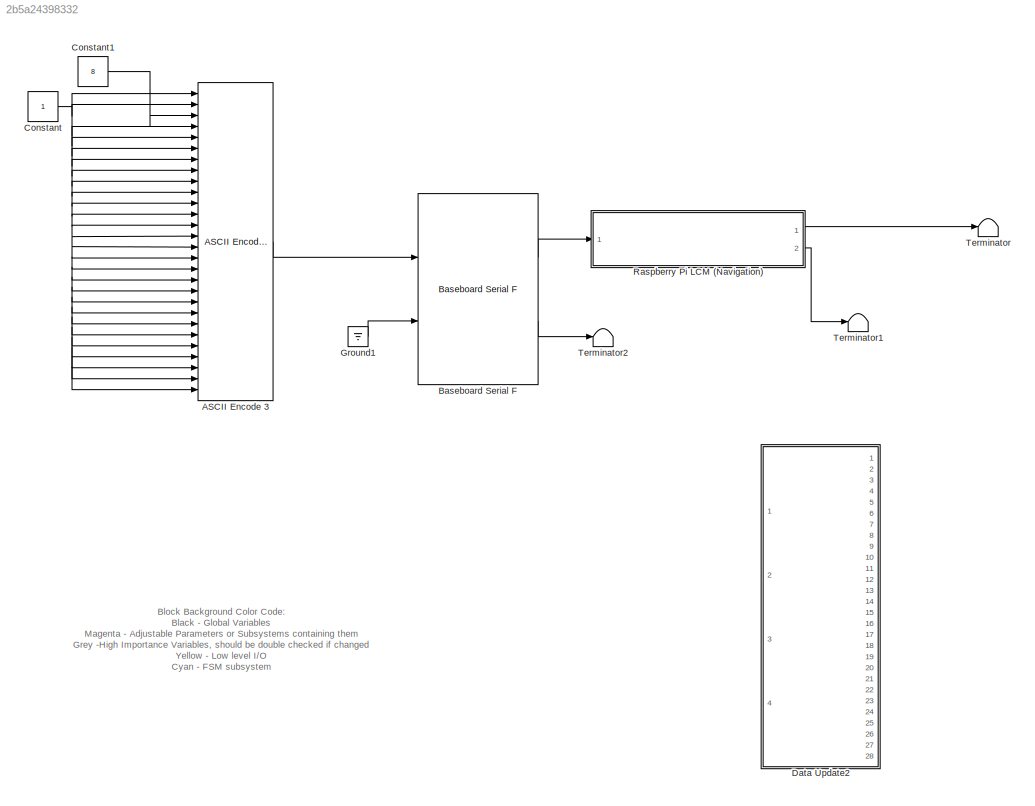
MODEL slx_2b5a24398332
KIND model
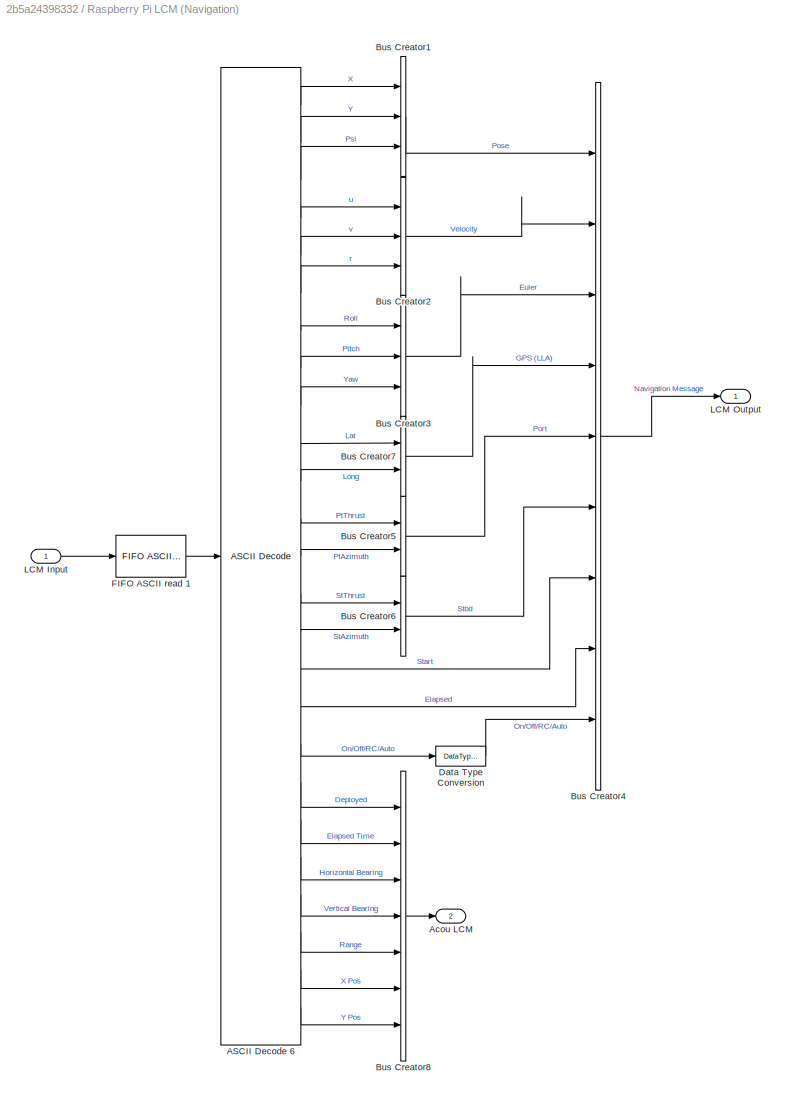
BLOCK [SubSystem]  Raspberry Pi LCM (Navigation)
  Ports = [1, 2]
  RequestExecContextInheritance = off
BLOCK [Reference]  Raspberry Pi LCM (Navigation)/ASCII Decode 6  REF=xpcseriallib/ASCII Decode 
  Ports = [1, 25]
  SourceBlock = xpcseriallib/ASCII Decode
  SourceType = ASCII Decode
  format = P1:%f P2:%f P3:%f V1:%f V2:%f V3:%f E1:%f E2:%f E3:%f Lat:%f Long:%f Pt1:%f Pt2:%f St1:%f St2:%f Start:%f Elapsed:%f RC:%d Deploy:%u Elapsed:%f Bearing1:%f Bearing2:%f Range:%f X_Pos:%f Y_Pos:%f \r\n
  nvars = 25
  vartypes = {}
BLOCK [Outport]  Raspberry Pi LCM (Navigation)/Acou LCM
  IconDisplay = Port number
  Port = 2
BLOCK [BusCreator]  Raspberry Pi LCM (Navigation)/Bus Creator1
  DisplayOption = bar
  Inputs = 3
  Ports = [3, 1]
BLOCK [BusCreator]  Raspberry Pi LCM (Navigation)/Bus Creator2
  DisplayOption = bar
  Inputs = 3
  Ports = [3, 1]
BLOCK [BusCreator]  Raspberry Pi LCM (Navigation)/Bus Creator3
  DisplayOption = bar
  Inputs = 3
  Ports = [3, 1]
BLOCK [BusCreator]  Raspberry Pi LCM (Navigation)/Bus Creator4
  DisplayOption = bar
  Inputs = 9
  Ports = [9, 1]
BLOCK [BusCreator]  Raspberry Pi LCM (Navigation)/Bus Creator5
  DisplayOption = bar
  Inputs = 2
  Ports = [2, 1]
BLOCK [BusCreator]  Raspberry Pi LCM (Navigation)/Bus Creator6
  DisplayOption = bar
  Inputs = 2
  Ports = [2, 1]
BLOCK [BusCreator]  Raspberry Pi LCM (Navigation)/Bus Creator7
  DisplayOption = bar
  Inputs = 2
  Ports = [2, 1]
BLOCK [BusCreator]  Raspberry Pi LCM (Navigation)/Bus Creator8
  DisplayOption = bar
  Inputs = 7
  Ports = [7, 1]
BLOCK [DataTypeConversion]  Raspberry Pi LCM (Navigation)/Data Type Conversion
  OutDataTypeStr = double
  RndMeth = Floor
  SaturateOnIntegerOverflow = off
BLOCK [Reference]  Raspberry Pi LCM (Navigation)/FIFO ASCII read 1  REF=xpcseriallib/FIFO ASCII read 
  Ports = [1, 1]
  SourceBlock = xpcseriallib/FIFO ASCII read
  SourceType = Asynchronous FIFO Block: reader
  enable = off
  header = {'P1:'}
  hold = Zero output if no new data
  maxsize = 2000
  outputtype = 8 bit uint null terminated
  sampletime = -1
  term = [13 10]
BLOCK [Inport]  Raspberry Pi LCM (Navigation)/LCM Input
  IconDisplay = Port number
BLOCK [Outport]  Raspberry Pi LCM (Navigation)/LCM Output
  IconDisplay = Port number
BLOCK [Reference] ASCII Encode 3  REF=xpcseriallib/ASCII Encode 
  Ports = [28, 1]
  SourceBlock = xpcseriallib/ASCII Encode
  SourceType = ASCII Encode
  format = {"Valid":%d, "Mode":%d, "Length":%d, "Activate":%d, "Waypoints":[%f, %f, %f, %f, %f, %f, %f, %f, %f, %f, %f, %f, %f, %f, %f, %f, %f, %f, %f, %f, %f, %f, %f, %f]} \r\n
  maxlength = 1000
  nvars = 28
  vartypes = { 'double' }
BLOCK [Reference] Baseboard Serial F  REF=xpcseriallib/Mainboard/Baseboard
Serial F
  Ports = [2, 2]
  SourceBlock = xpcseriallib/Mainboard/Baseboard\nSerial F
  SourceType = Baseboard RS232 Send Receive
  automode1 = on
  automode2 = on
  baud1 = 115200
  baud2 = 115200
  config = Com1/Com3
  fifomode1 = 64 deep
  fifomode2 = 64 deep
  group = Basic Setup
  irqnum = 4
  ndata1 = 7
  ndata2 = 7
  nstop1 = 1
  nstop2 = 1
  parity1 = Even
  parity2 = Even
  port = 1
  rcvfifosize1 = 1024
  rcvfifosize2 = 1024
  rlevel1 = 1
  rlevel2 = 1
  saddr1 = 0x3f8
  saddr2 = 0x3e8
  xmtdatatype1 = 8 bit uint null terminated
  xmtdatatype2 = 8 bit uint null terminated
  xmtfifosize1 = 1024
  xmtfifosize2 = 1024
BLOCK [Constant] Constant
BLOCK [Constant] Constant1
  Value = 8
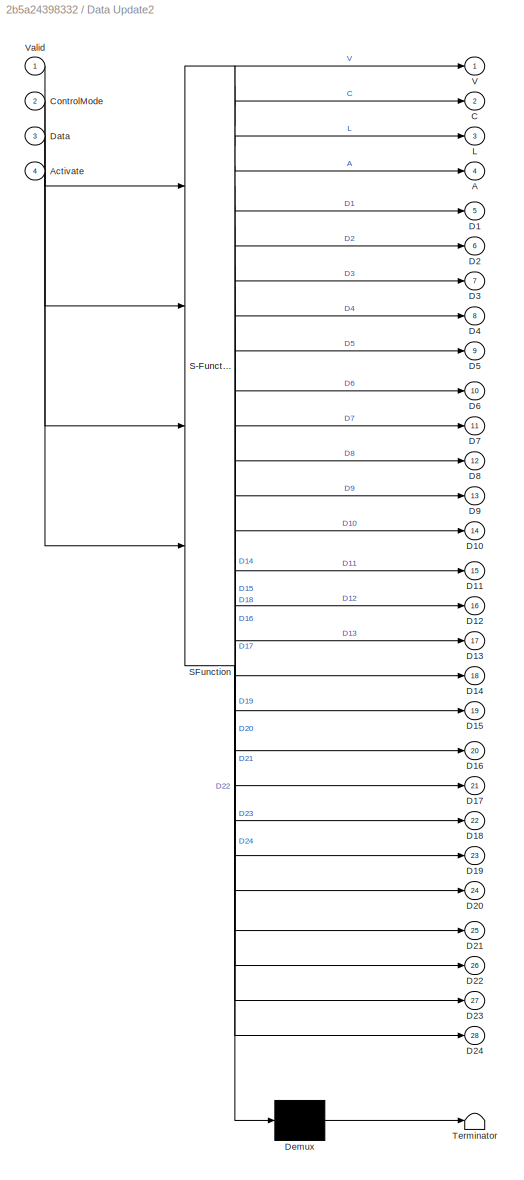
BLOCK [SubSystem] Data Update2
  Commented = on
  ErrorFcn = Stateflow.Translate.translate
  PermitHierarchicalResolution = ExplicitOnly
  Ports = [4, 28]
  RequestExecContextInheritance = off
  SFBlockType = MATLAB Function
  TreatAsAtomicUnit = on
BLOCK [Demux] Data Update2/ Demux 
  Outputs = 1
  Ports = [1, 1]
BLOCK [S-Function] Data Update2/ SFunction 
  EnableBusSupport = on
  FunctionName = sf_sfun
  PortCounts = [4 29]
  Ports = [4, 29]
  Tag = Stateflow S-Function RobotX_CommOnlyAllThreeV4 1
BLOCK [Terminator] Data Update2/ Terminator 
BLOCK [Outport] Data Update2/A
  IconDisplay = Port number
  Port = 4
BLOCK [Inport] Data Update2/Activate
  IconDisplay = Port number
  Port = 4
BLOCK [Outport] Data Update2/C
  IconDisplay = Port number
  Port = 2
BLOCK [Inport] Data Update2/ControlMode
  IconDisplay = Port number
  Port = 2
BLOCK [Outport] Data Update2/D1
  IconDisplay = Port number
  Port = 5
BLOCK [Outport] Data Update2/D10
  IconDisplay = Port number
  Port = 14
BLOCK [Outport] Data Update2/D11
  IconDisplay = Port number
  Port = 15
BLOCK [Outport] Data Update2/D12
  IconDisplay = Port number
  Port = 16
BLOCK [Outport] Data Update2/D13
  IconDisplay = Port number
  Port = 17
BLOCK [Outport] Data Update2/D14
  IconDisplay = Port number
  Port = 18
BLOCK [Outport] Data Update2/D15
  IconDisplay = Port number
  Port = 19
BLOCK [Outport] Data Update2/D16
  IconDisplay = Port number
  Port = 20
BLOCK [Outport] Data Update2/D17
  IconDisplay = Port number
  Port = 21
BLOCK [Outport] Data Update2/D18
  IconDisplay = Port number
  Port = 22
BLOCK [Outport] Data Update2/D19
  IconDisplay = Port number
  Port = 23
BLOCK [Outport] Data Update2/D2
  IconDisplay = Port number
  Port = 6
BLOCK [Outport] Data Update2/D20
  IconDisplay = Port number
  Port = 24
BLOCK [Outport] Data Update2/D21
  IconDisplay = Port number
  Port = 25
BLOCK [Outport] Data Update2/D22
  IconDisplay = Port number
  Port = 26
BLOCK [Outport] Data Update2/D23
  IconDisplay = Port number
  Port = 27
BLOCK [Outport] Data Update2/D24
  IconDisplay = Port number
  Port = 28
BLOCK [Outport] Data Update2/D3
  IconDisplay = Port number
  Port = 7
BLOCK [Outport] Data Update2/D4
  IconDisplay = Port number
  Port = 8
BLOCK [Outport] Data Update2/D5
  IconDisplay = Port number
  Port = 9
BLOCK [Outport] Data Update2/D6
  IconDisplay = Port number
  Port = 10
BLOCK [Outport] Data Update2/D7
  IconDisplay = Port number
  Port = 11
BLOCK [Outport] Data Update2/D8
  IconDisplay = Port number
  Port = 12
BLOCK [Outport] Data Update2/D9
  IconDisplay = Port number
  Port = 13
BLOCK [Inport] Data Update2/Data
  IconDisplay = Port number
  Port = 3
BLOCK [Outport] Data Update2/L
  IconDisplay = Port number
  Port = 3
BLOCK [Outport] Data Update2/V
  IconDisplay = Port number
BLOCK [Inport] Data Update2/Valid
  IconDisplay = Port number
BLOCK [Ground] Ground1
BLOCK [Terminator] Terminator
BLOCK [Terminator] Terminator1
BLOCK [Terminator] Terminator2
ANNOTATION (root): Block Background Color Code: Black - Global Variables Magenta - Adjustable Parameters or Subsystems containing them Grey -High Importance Variables, should be double checked if changed Yellow - Low level I/O Cyan - FSM subsystem Light Blue - Conditional Selector Block Dark Green - Task Enablers Orange - Output Selectors Green - Signal Bussing Blocks Red - Logic blocks. Determine signals for output...<+28ch>
LINE  Raspberry Pi LCM (Navigation)/ASCII Decode 6:1 ->  Raspberry Pi LCM (Navigation)/Bus Creator1:1
LINE  Raspberry Pi LCM (Navigation)/ASCII Decode 6:10 ->  Raspberry Pi LCM (Navigation)/Bus Creator7:1
LINE  Raspberry Pi LCM (Navigation)/ASCII Decode 6:11 ->  Raspberry Pi LCM (Navigation)/Bus Creator7:2
LINE  Raspberry Pi LCM (Navigation)/ASCII Decode 6:12 ->  Raspberry Pi LCM (Navigation)/Bus Creator5:1
LINE  Raspberry Pi LCM (Navigation)/ASCII Decode 6:13 ->  Raspberry Pi LCM (Navigation)/Bus Creator5:2
LINE  Raspberry Pi LCM (Navigation)/ASCII Decode 6:14 ->  Raspberry Pi LCM (Navigation)/Bus Creator6:1
LINE  Raspberry Pi LCM (Navigation)/ASCII Decode 6:15 ->  Raspberry Pi LCM (Navigation)/Bus Creator6:2
LINE  Raspberry Pi LCM (Navigation)/ASCII Decode 6:16 ->  Raspberry Pi LCM (Navigation)/Bus Creator4:7
LINE  Raspberry Pi LCM (Navigation)/ASCII Decode 6:17 ->  Raspberry Pi LCM (Navigation)/Bus Creator4:8
LINE  Raspberry Pi LCM (Navigation)/ASCII Decode 6:18 ->  Raspberry Pi LCM (Navigation)/Data Type Conversion:1
LINE  Raspberry Pi LCM (Navigation)/ASCII Decode 6:19 ->  Raspberry Pi LCM (Navigation)/Bus Creator8:1
LINE  Raspberry Pi LCM (Navigation)/ASCII Decode 6:2 ->  Raspberry Pi LCM (Navigation)/Bus Creator1:2
LINE  Raspberry Pi LCM (Navigation)/ASCII Decode 6:20 ->  Raspberry Pi LCM (Navigation)/Bus Creator8:2
LINE  Raspberry Pi LCM (Navigation)/ASCII Decode 6:21 ->  Raspberry Pi LCM (Navigation)/Bus Creator8:3
LINE  Raspberry Pi LCM (Navigation)/ASCII Decode 6:22 ->  Raspberry Pi LCM (Navigation)/Bus Creator8:4
LINE  Raspberry Pi LCM (Navigation)/ASCII Decode 6:23 ->  Raspberry Pi LCM (Navigation)/Bus Creator8:5
LINE  Raspberry Pi LCM (Navigation)/ASCII Decode 6:24 ->  Raspberry Pi LCM (Navigation)/Bus Creator8:6
LINE  Raspberry Pi LCM (Navigation)/ASCII Decode 6:25 ->  Raspberry Pi LCM (Navigation)/Bus Creator8:7
LINE  Raspberry Pi LCM (Navigation)/ASCII Decode 6:3 ->  Raspberry Pi LCM (Navigation)/Bus Creator1:3
LINE  Raspberry Pi LCM (Navigation)/ASCII Decode 6:4 ->  Raspberry Pi LCM (Navigation)/Bus Creator2:1
LINE  Raspberry Pi LCM (Navigation)/ASCII Decode 6:5 ->  Raspberry Pi LCM (Navigation)/Bus Creator2:2
LINE  Raspberry Pi LCM (Navigation)/ASCII Decode 6:6 ->  Raspberry Pi LCM (Navigation)/Bus Creator2:3
LINE  Raspberry Pi LCM (Navigation)/ASCII Decode 6:7 ->  Raspberry Pi LCM (Navigation)/Bus Creator3:1
LINE  Raspberry Pi LCM (Navigation)/ASCII Decode 6:8 ->  Raspberry Pi LCM (Navigation)/Bus Creator3:2
LINE  Raspberry Pi LCM (Navigation)/ASCII Decode 6:9 ->  Raspberry Pi LCM (Navigation)/Bus Creator3:3
LINE  Raspberry Pi LCM (Navigation)/Bus Creator1:1 ->  Raspberry Pi LCM (Navigation)/Bus Creator4:1
LINE  Raspberry Pi LCM (Navigation)/Bus Creator2:1 ->  Raspberry Pi LCM (Navigation)/Bus Creator4:2
LINE  Raspberry Pi LCM (Navigation)/Bus Creator3:1 ->  Raspberry Pi LCM (Navigation)/Bus Creator4:3
LINE  Raspberry Pi LCM (Navigation)/Bus Creator4:1 ->  Raspberry Pi LCM (Navigation)/LCM Output:1
LINE  Raspberry Pi LCM (Navigation)/Bus Creator5:1 ->  Raspberry Pi LCM (Navigation)/Bus Creator4:5
LINE  Raspberry Pi LCM (Navigation)/Bus Creator6:1 ->  Raspberry Pi LCM (Navigation)/Bus Creator4:6
LINE  Raspberry Pi LCM (Navigation)/Bus Creator7:1 ->  Raspberry Pi LCM (Navigation)/Bus Creator4:4
LINE  Raspberry Pi LCM (Navigation)/Bus Creator8:1 ->  Raspberry Pi LCM (Navigation)/Acou LCM:1
LINE  Raspberry Pi LCM (Navigation)/Data Type Conversion:1 ->  Raspberry Pi LCM (Navigation)/Bus Creator4:9
LINE  Raspberry Pi LCM (Navigation)/FIFO ASCII read 1:1 ->  Raspberry Pi LCM (Navigation)/ASCII Decode 6:1
LINE  Raspberry Pi LCM (Navigation)/LCM Input:1 ->  Raspberry Pi LCM (Navigation)/FIFO ASCII read 1:1
LINE  Raspberry Pi LCM (Navigation):1 -> Terminator:1
LINE  Raspberry Pi LCM (Navigation):2 -> Terminator1:1
LINE ASCII Encode 3:1 -> Baseboard Serial F:1
LINE Baseboard Serial F:1 ->  Raspberry Pi LCM (Navigation):1
LINE Baseboard Serial F:2 -> Terminator2:1
LINE Constant1:1 -> ASCII Encode 3:3
NET Constant:1 -> ASCII Encode 3:1, ASCII Encode 3:10, ASCII Encode 3:11, ASCII Encode 3:12, ASCII Encode 3:13, ASCII Encode 3:14, ASCII Encode 3:15, ASCII Encode 3:16, ASCII Encode 3:17, ASCII Encode 3:18, ASCII Encode 3:19, ASCII Encode 3:2, ASCII Encode 3:20, ASCII Encode 3:21, ASCII Encode 3:22, ASCII Encode 3:23, ASCII Encode 3:24, ASCII Encode 3:25, ASCII Encode 3:26, ASCII Encode 3:27, ASCII Encode 3:28, ASCII Encode 3:4, ASCII Encode 3:5, ASCII Encode 3:6, ASCII Encode 3:7, ASCII Encode 3:8, ASCII Encode 3:9
LINE Ground1:1 -> Baseboard Serial F:2
note: NET lines group one-source signal fan-out (src -> all destinations, sorted); 1:1 wires keep LINE
